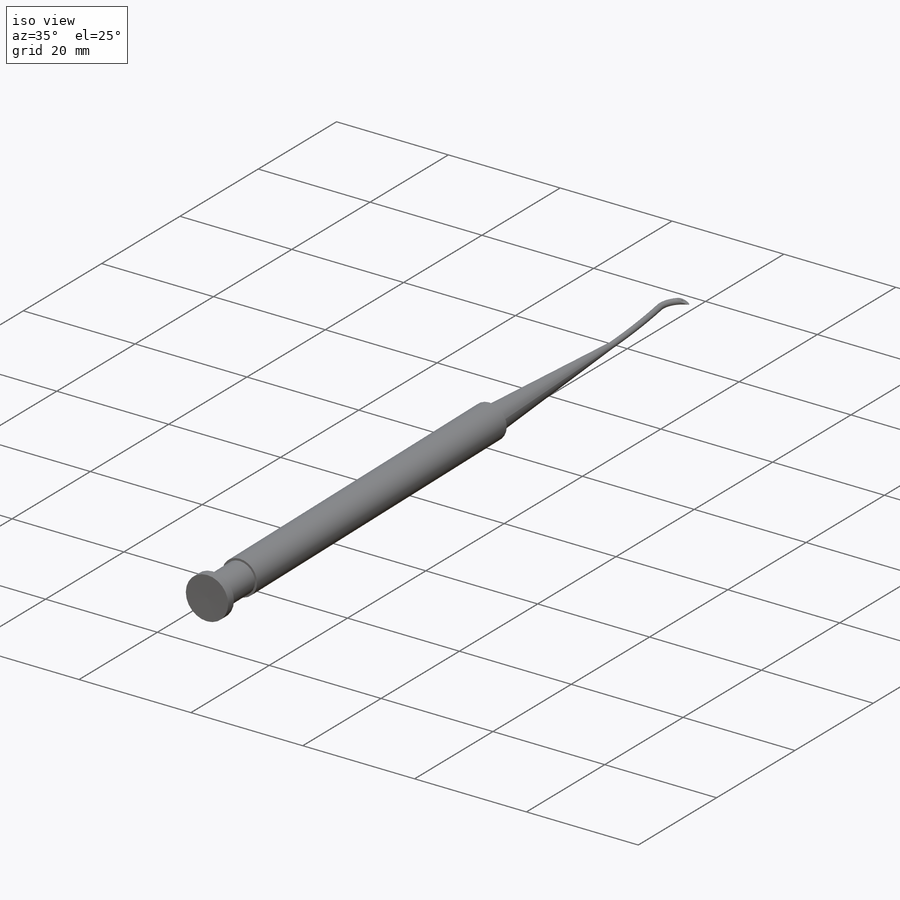
[diagram: iso view]
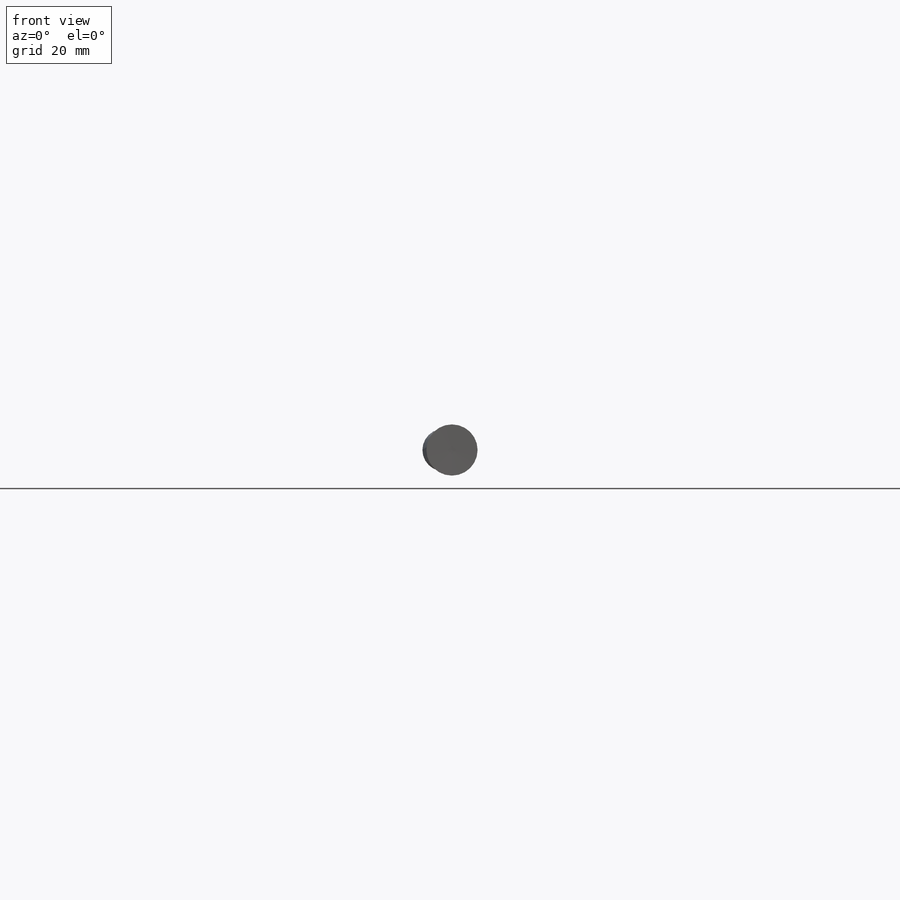
[diagram: front view]
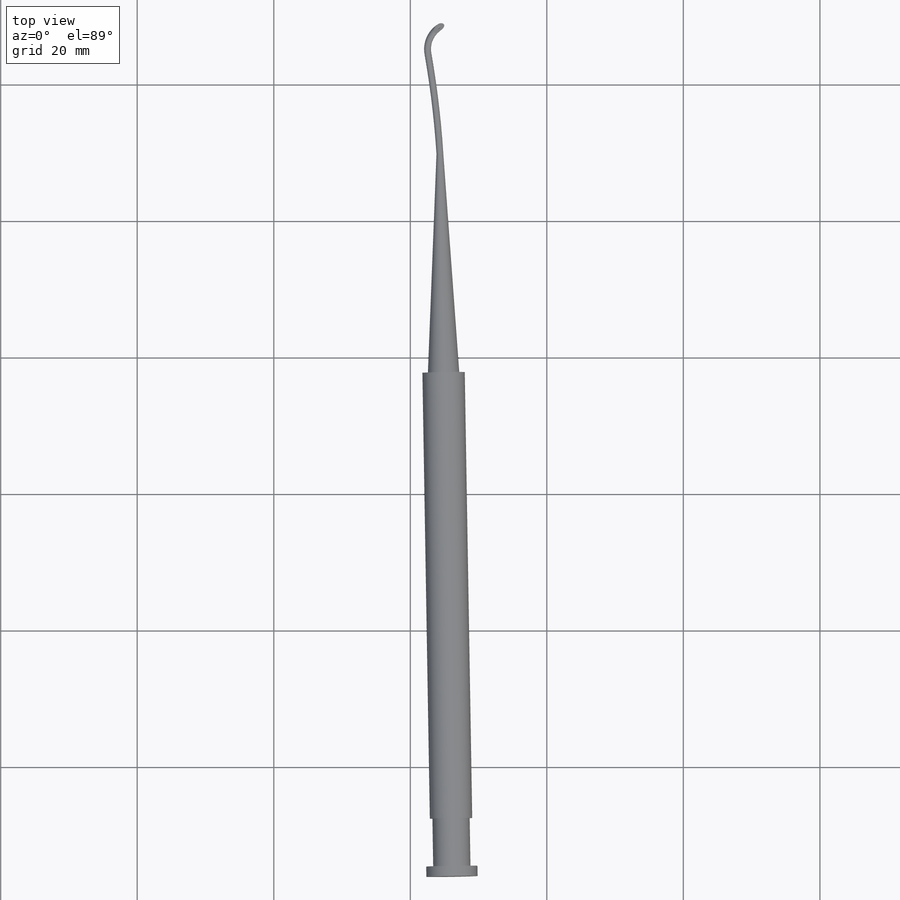
[diagram: top view]
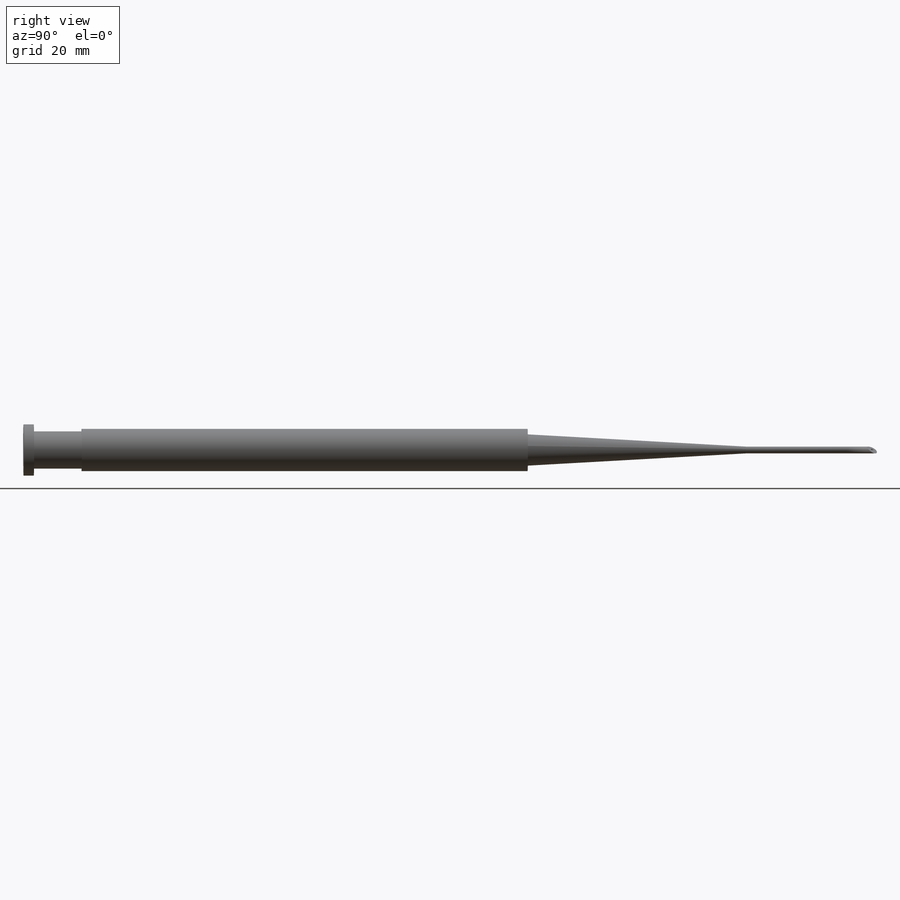
[diagram: right view]
SOLIDWORKS PART (.sldprt)
format: sldprt  version: not decoded by parser v0  size: 1,990,656 bytes
history: native  units: mm
features: sketch x6, plane x2, material x1, revolve x1, sweep x1, cut_extrude x1 (+13 scaffold rows collapsed)
feature tree (25):
  scaffold x13  (default folders/planes/origin — collapsed)
  material  "Material <not specified>"
  sketch  "linear trace"  dims[D1=~1.471746mm]
  sketch  "Sketch2"  dims[D1=3.1mm D2=~72.999643mm D3=2.725mm D4=3.75mm D5=1.5mm D6=7.0mm D7=0.5mm]
  revolve  "Revolve4"  Angle=360deg
  sketch  "Sketch4"
  plane  "Plane1"
  sketch  "Sketch5"  dims[D1=0.3mm]
  sweep  "Sweep1"
  sketch  "Sketch6"  dims[D1=~2.089866mm]
  plane  "Plane3"
  sketch  "Sketch7"  dims[c1.D1=~5.464655mm c1.D2=~2.344254mm c2.D1=~0.283172mm c2.D2=~0.155047mm c3.D1=~6.101354mm c3.D2=~3.670253mm]
  cut_extrude  "Cut-Extrude1"  Depth=10mm
decode coverage: 7 of 9 modeling features carry decoded parameters
note: ~ marks probable driven/reference dimensions
note: suppression state not decoded; provenance and decode notes live in map.json
